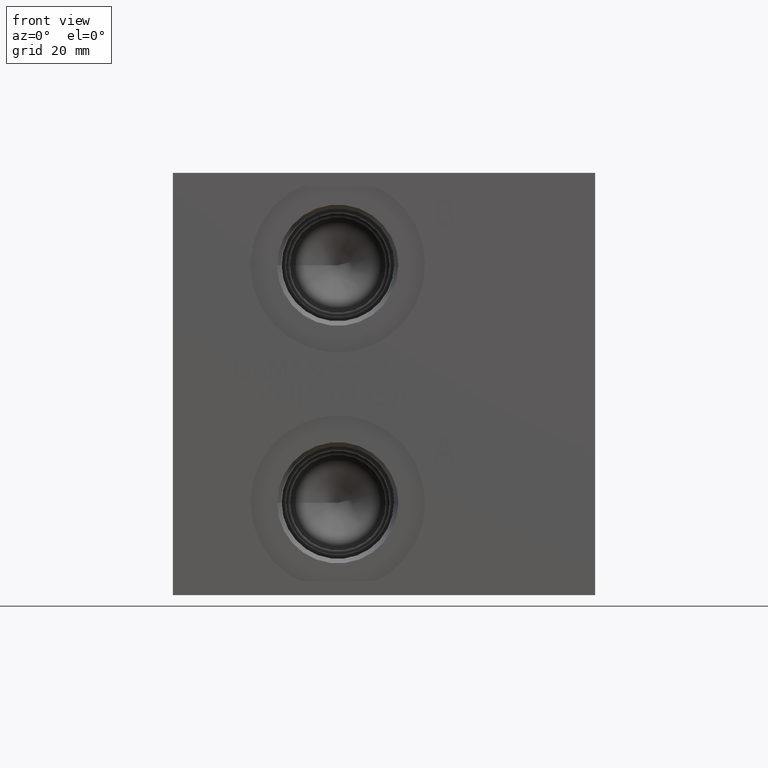
[diagram: clean part render]
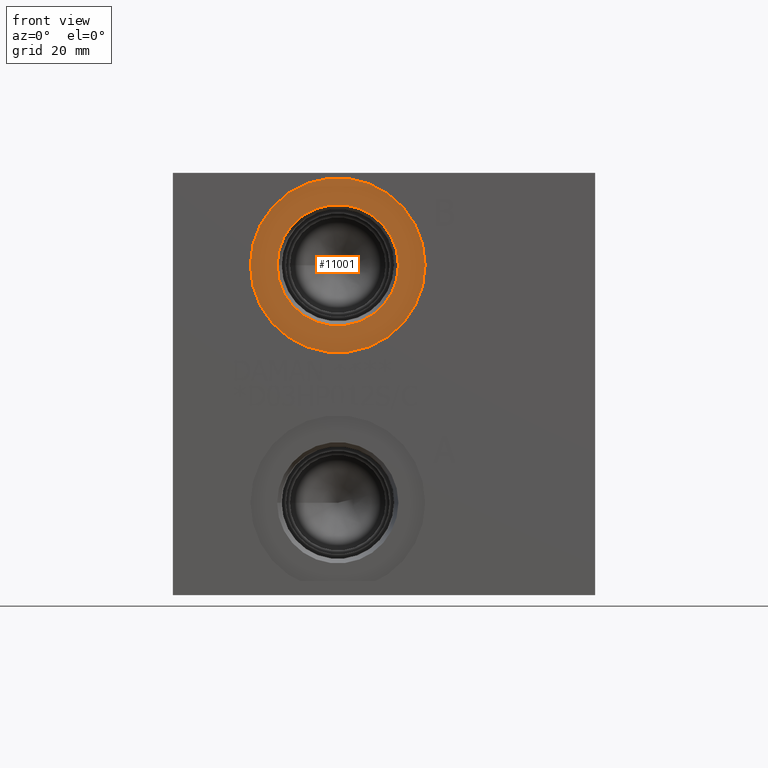
[diagram: same view with one face highlighted and labeled with its STEP entity id]
A machine part, front view. The second image highlights one B-rep face of the part: STEP entity #11001.
In plain terms, the highlighted planar face has unit normal (0, 1, 0).
Its self-contained STEP definition (entity closure, byte-faithful):
#278=CIRCLE('',#11601,21.0185);
#279=CIRCLE('',#11602,21.0185);
#280=CIRCLE('',#11604,14.5923);
#281=CIRCLE('',#11605,14.5923);
#399=FACE_BOUND('',#2001,.T.);
#1372=FACE_OUTER_BOUND('',#2000,.T.);
#2000=EDGE_LOOP('',(#9530,#9531));
#2001=EDGE_LOOP('',(#9532,#9533));
#5071=VERTEX_POINT('',#18851);
#5072=VERTEX_POINT('',#18853);
#5073=VERTEX_POINT('',#18857);
#5074=VERTEX_POINT('',#18858);
#6583=EDGE_CURVE('',#5071,#5072,#278,.T.);
#6584=EDGE_CURVE('',#5072,#5071,#279,.T.);
#6585=EDGE_CURVE('',#5073,#5074,#280,.T.);
#6586=EDGE_CURVE('',#5074,#5073,#281,.T.);
#9530=ORIENTED_EDGE('',*,*,#6584,.F.);
#9531=ORIENTED_EDGE('',*,*,#6583,.F.);
#9532=ORIENTED_EDGE('',*,*,#6585,.T.);
#9533=ORIENTED_EDGE('',*,*,#6586,.T.);
#10038=PLANE('',#11603);
#11001=ADVANCED_FACE('',(#1372,#399),#10038,.F.);
#11601=AXIS2_PLACEMENT_3D('',#18854,#13787,#13788);
#11602=AXIS2_PLACEMENT_3D('',#18855,#13789,#13790);
#11603=AXIS2_PLACEMENT_3D('',#18856,#13791,#13792);
#11604=AXIS2_PLACEMENT_3D('',#18859,#13793,#13794);
#11605=AXIS2_PLACEMENT_3D('',#18860,#13795,#13796);
#13787=DIRECTION('center_axis',(0.,1.,0.));
#13788=DIRECTION('ref_axis',(1.,0.,0.));
#13789=DIRECTION('center_axis',(0.,1.,0.));
#13790=DIRECTION('ref_axis',(1.,0.,0.));
#13791=DIRECTION('center_axis',(0.,1.,0.));
#13792=DIRECTION('ref_axis',(0.,0.,1.));
#13793=DIRECTION('center_axis',(0.,1.,0.));
#13794=DIRECTION('ref_axis',(1.,0.,0.));
#13795=DIRECTION('center_axis',(0.,1.,0.));
#13796=DIRECTION('ref_axis',(1.,0.,0.));
#18851=CARTESIAN_POINT('',(18.6563,0.7874,79.375));
#18853=CARTESIAN_POINT('',(60.6933,0.7874,79.375));
#18854=CARTESIAN_POINT('Origin',(39.6748,0.7874,79.375));
#18855=CARTESIAN_POINT('Origin',(39.6748,0.7874,79.375));
#18856=CARTESIAN_POINT('Origin',(54.2671,0.7874,79.375));
#18857=CARTESIAN_POINT('',(54.2671,0.7874,79.375));
#18858=CARTESIAN_POINT('',(25.0825,0.787399999999999,79.375));
#18859=CARTESIAN_POINT('Origin',(39.6748,0.7874,79.375));
#18860=CARTESIAN_POINT('Origin',(39.6748,0.7874,79.375));